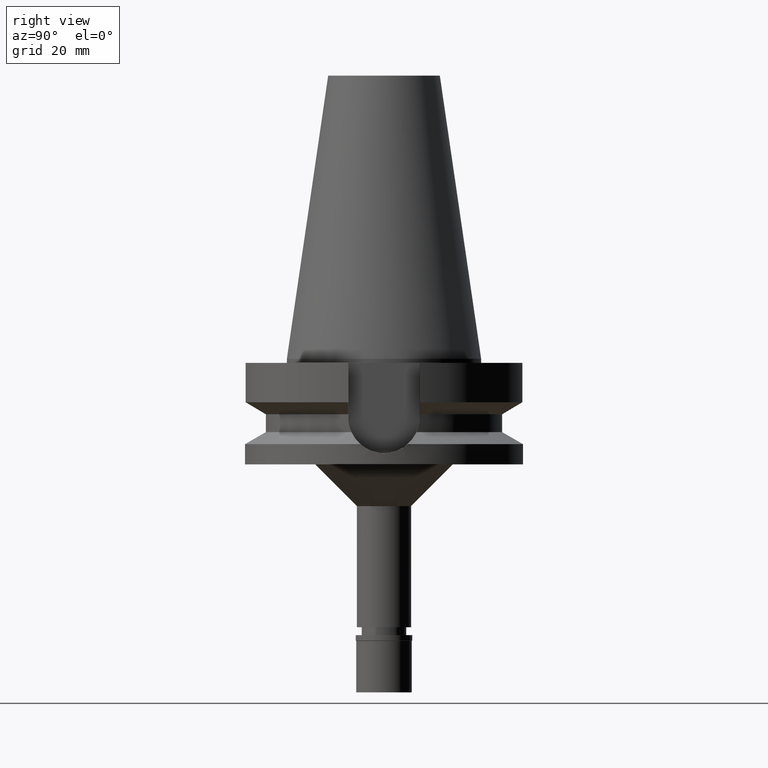
[diagram: clean part render]
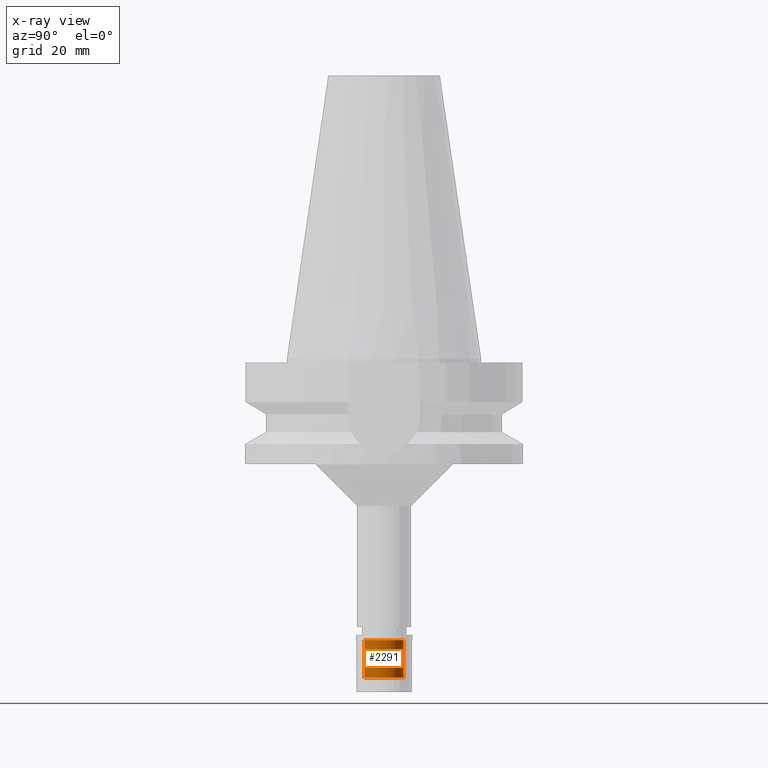
[diagram: x-ray — body ghosted, one internal face saturated and labeled with its STEP entity id]
A machine part, right view, then the same camera in x-ray: the body is ghosted and one INTERNAL B-rep face — a face not visible from any outside direction — is saturated and labeled: STEP entity #2291.
In plain terms, the highlighted cylindrical surface (edge-blend (fillet) strip) has radius 7 mm, axis along (0, 0, -1).
Its self-contained STEP definition (entity closure, byte-faithful):
#101 = VERTEX_POINT ( 'NONE', #1425 ) ;
#102 = DIRECTION ( 'NONE',  ( 0.0000000000000000000, 0.0000000000000000000, 1.000000000000000000 ) ) ;
#114 = LINE ( 'NONE', #2996, #1332 ) ;
#207 = EDGE_LOOP ( 'NONE', ( #1278, #286, #666, #1455 ) ) ;
#260 = DIRECTION ( 'NONE',  ( 0.0000000000000000000, 1.000000000000000000, 0.0000000000000000000 ) ) ;
#286 = ORIENTED_EDGE ( 'NONE', *, *, #1961, .T. ) ;
#313 = FACE_OUTER_BOUND ( 'NONE', #207, .T. ) ;
#358 = CYLINDRICAL_SURFACE ( 'NONE', #691, 7.000000000000000000 ) ;
#423 = LINE ( 'NONE', #3064, #3000 ) ;
#645 = CIRCLE ( 'NONE', #1747, 7.000000000000000000 ) ;
#666 = ORIENTED_EDGE ( 'NONE', *, *, #1448, .T. ) ;
#691 = AXIS2_PLACEMENT_3D ( 'NONE', #879, #1290, #2255 ) ;
#771 = CIRCLE ( 'NONE', #2242, 7.000000000000000000 ) ;
#879 = CARTESIAN_POINT ( 'NONE',  ( 0.0000000000000000000, 0.0000000000000000000, 0.0000000000000000000 ) ) ;
#965 = CARTESIAN_POINT ( 'NONE',  ( 0.0000000000000000000, 0.0000000000000000000, -15.29999999999999893 ) ) ;
#1082 = DIRECTION ( 'NONE',  ( 0.0000000000000000000, -1.000000000000000000, 0.0000000000000000000 ) ) ;
#1274 = VERTEX_POINT ( 'NONE', #2155 ) ;
#1278 = ORIENTED_EDGE ( 'NONE', *, *, #2065, .T. ) ;
#1290 = DIRECTION ( 'NONE',  ( 0.0000000000000000000, 0.0000000000000000000, -1.000000000000000000 ) ) ;
#1332 = VECTOR ( 'NONE', #1583, 1000.000000000000000 ) ;
#1425 = CARTESIAN_POINT ( 'NONE',  ( 0.0000000000000000000, -7.000000000000000000, -15.29999999999999893 ) ) ;
#1448 = EDGE_CURVE ( 'NONE', #1274, #2959, #645, .T. ) ;
#1455 = ORIENTED_EDGE ( 'NONE', *, *, #3056, .F. ) ;
#1583 = DIRECTION ( 'NONE',  ( 0.0000000000000000000, 0.0000000000000000000, 1.000000000000000000 ) ) ;
#1747 = AXIS2_PLACEMENT_3D ( 'NONE', #2288, #102, #1082 ) ;
#1956 = DIRECTION ( 'NONE',  ( 0.0000000000000000000, 0.0000000000000000000, -1.000000000000000000 ) ) ;
#1961 = EDGE_CURVE ( 'NONE', #101, #1274, #423, .T. ) ;
#1989 = CARTESIAN_POINT ( 'NONE',  ( 0.0000000000000000000, 7.000000000000000000, -1.800000000000000044 ) ) ;
#2065 = EDGE_CURVE ( 'NONE', #2209, #101, #771, .T. ) ;
#2155 = CARTESIAN_POINT ( 'NONE',  ( 0.0000000000000000000, -7.000000000000000000, -1.800000000000000044 ) ) ;
#2209 = VERTEX_POINT ( 'NONE', #2307 ) ;
#2242 = AXIS2_PLACEMENT_3D ( 'NONE', #965, #1956, #260 ) ;
#2255 = DIRECTION ( 'NONE',  ( 0.0000000000000000000, -1.000000000000000000, 0.0000000000000000000 ) ) ;
#2288 = CARTESIAN_POINT ( 'NONE',  ( 0.0000000000000000000, 0.0000000000000000000, -1.800000000000000044 ) ) ;
#2291 = ADVANCED_FACE ( 'NONE', ( #313 ), #358, .F. ) ;
#2307 = CARTESIAN_POINT ( 'NONE',  ( 0.0000000000000000000, 7.000000000000000000, -15.29999999999999893 ) ) ;
#2601 = DIRECTION ( 'NONE',  ( 0.0000000000000000000, 0.0000000000000000000, 1.000000000000000000 ) ) ;
#2959 = VERTEX_POINT ( 'NONE', #1989 ) ;
#2996 = CARTESIAN_POINT ( 'NONE',  ( 0.0000000000000000000, 7.000000000000000000, -15.29999999999999893 ) ) ;
#3000 = VECTOR ( 'NONE', #2601, 1000.000000000000000 ) ;
#3056 = EDGE_CURVE ( 'NONE', #2209, #2959, #114, .T. ) ;
#3064 = CARTESIAN_POINT ( 'NONE',  ( 0.0000000000000000000, -7.000000000000000000, -15.29999999999999893 ) ) ;